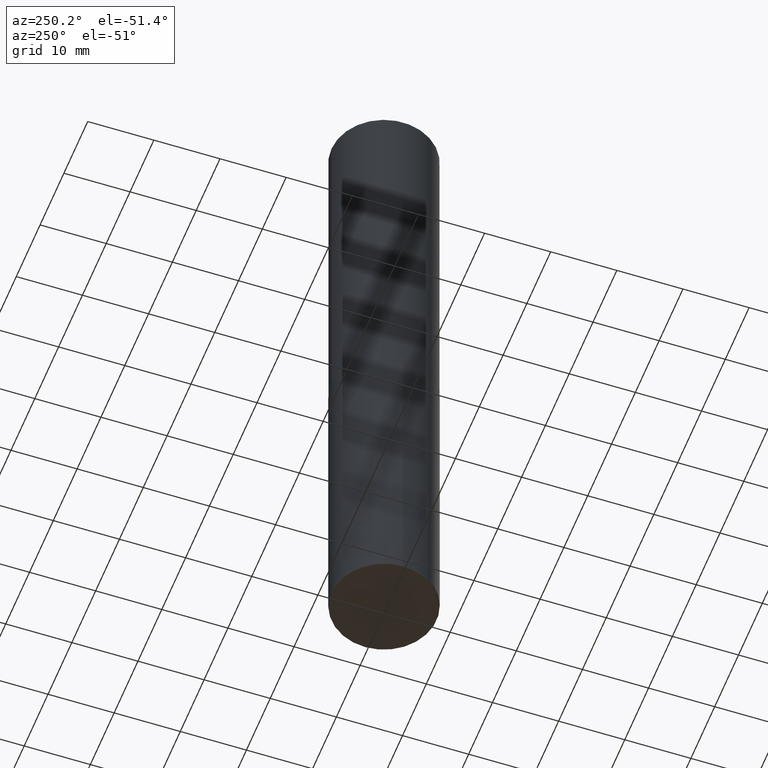
[diagram: clean part render]
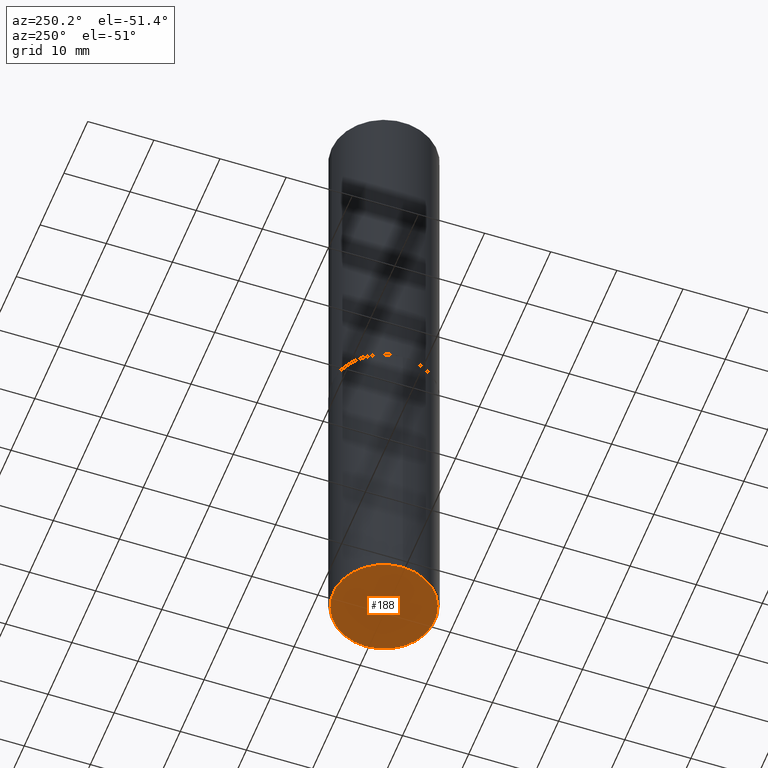
[diagram: same view with one face highlighted and labeled with its STEP entity id]
A machine part, auxiliary view. The second image highlights one B-rep face of the part: STEP entity #188.
In plain terms, the highlighted planar face has unit normal (0, -0, -1).
Its self-contained STEP definition (entity closure, byte-faithful):
#41 = ORIENTED_EDGE ( 'NONE', *, *, #197, .F. ) ;
#47 = DIRECTION ( 'NONE',  ( 1.000000000000000000, -6.982962677686265922E-15, 0.000000000000000000 ) ) ;
#50 = AXIS2_PLACEMENT_3D ( 'NONE', #248, #218, #47 ) ;
#108 = ORIENTED_EDGE ( 'NONE', *, *, #314, .F. ) ;
#123 = CARTESIAN_POINT ( 'NONE',  ( 0.3025000000000000466, -1.607827156537267738E-14, -3.999999999999999556 ) ) ;
#141 = AXIS2_PLACEMENT_3D ( 'NONE', #260, #287, #388 ) ;
#147 = CIRCLE ( 'NONE', #50, 0.3025000000000000466 ) ;
#152 = VERTEX_POINT ( 'NONE', #123 ) ;
#179 = PLANE ( 'NONE',  #308 ) ;
#188 = ADVANCED_FACE ( 'NONE', ( #404 ), #179, .T. ) ;
#196 = CARTESIAN_POINT ( 'NONE',  ( -0.3025000000000000466, -1.176354903621605689E-14, -3.999999999999999556 ) ) ;
#197 = EDGE_CURVE ( 'NONE', #381, #152, #147, .T. ) ;
#218 = DIRECTION ( 'NONE',  ( -2.445468806185136597E-29, 3.491481338843145583E-15, 1.000000000000000000 ) ) ;
#231 = EDGE_LOOP ( 'NONE', ( #108, #41 ) ) ;
#248 = CARTESIAN_POINT ( 'NONE',  ( 9.781875224740545266E-29, -1.396592535537258075E-14, -3.999999999999999556 ) ) ;
#260 = CARTESIAN_POINT ( 'NONE',  ( 9.781875224740545266E-29, -1.396592535537258075E-14, -3.999999999999999556 ) ) ;
#282 = DIRECTION ( 'NONE',  ( -1.000000000000000000, 6.982962677686265922E-15, -4.876176775795935793E-29 ) ) ;
#287 = DIRECTION ( 'NONE',  ( -2.445468806185136597E-29, 3.491481338843145583E-15, 1.000000000000000000 ) ) ;
#308 = AXIS2_PLACEMENT_3D ( 'NONE', #407, #312, #282 ) ;
#311 = CIRCLE ( 'NONE', #141, 0.3025000000000000466 ) ;
#312 = DIRECTION ( 'NONE',  ( 2.438088387897960049E-29, -3.491481338843145188E-15, -1.000000000000000000 ) ) ;
#314 = EDGE_CURVE ( 'NONE', #152, #381, #311, .T. ) ;
#381 = VERTEX_POINT ( 'NONE', #196 ) ;
#388 = DIRECTION ( 'NONE',  ( 1.000000000000000000, -6.982962677686265922E-15, 0.000000000000000000 ) ) ;
#404 = FACE_OUTER_BOUND ( 'NONE', #231, .T. ) ;
#407 = CARTESIAN_POINT ( 'NONE',  ( 1.482687160976392448E-28, -6.741203388657175081E-15, -4.000000000000000000 ) ) ;